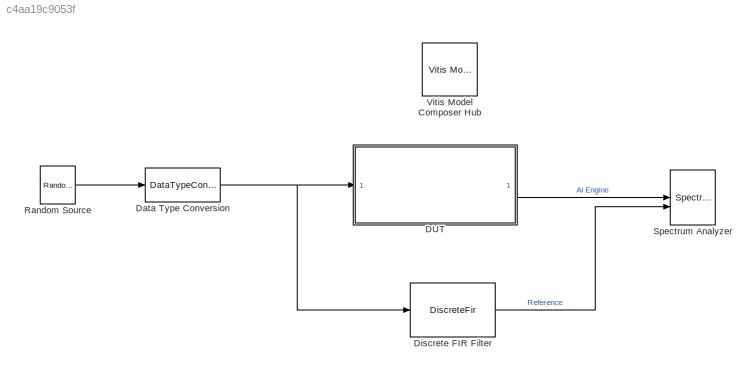
MODEL slx_c4aa19c9053f
KIND model
CONFIG AbsTol = auto
CONFIG EnableMultiTasking = off
CONFIG FixedStep = auto
CONFIG MaxStep = auto
CONFIG MinStep = auto
CONFIG PreLoadFcn = test_tap32_fft128;
CONFIG RelTol = 1e-3
CONFIG SampleTimeConstraint = Unconstrained
CONFIG SolverName = VariableStepAuto
CONFIG StartTime = 0.0
CONFIG StopTime = 1024*16
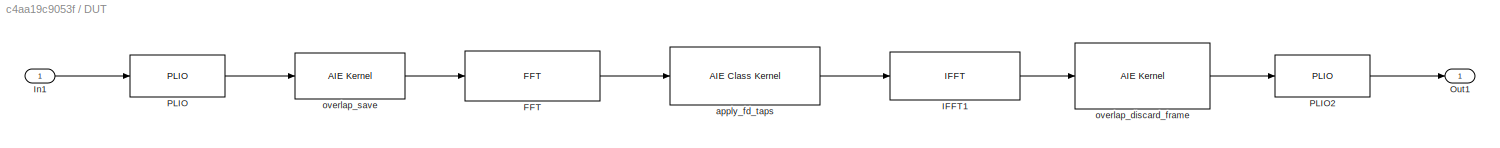
BLOCK [SubSystem] DUT
BLOCK [Reference] DUT/FFT  REF=aieDSP/FFT
  SourceBlock = aieDSP/FFT
  SourceType = FFT
BLOCK [Reference] DUT/IFFT1  REF=aieDSP/IFFT
  SourceBlock = aieDSP/IFFT
  SourceType = IFFT
BLOCK [Inport] DUT/In1
BLOCK [Outport] DUT/Out1
BLOCK [Reference] DUT/PLIO  REF=aieBasic/PLIO
  SourceBlock = aieBasic/PLIO
  SourceType = PLIO
BLOCK [Reference] DUT/PLIO2  REF=aieBasic/PLIO
  SourceBlock = aieBasic/PLIO
  SourceType = PLIO
BLOCK [Reference] DUT/apply_fd_taps  REF=aieBasic/AIE Class Kernel
  SourceBlock = aieBasic/AIE Class Kernel
  SourceType = AIE Class Kernel Function
BLOCK [Reference] DUT/overlap_discard_frame  REF=aieBasic/AIE Kernel
  SourceBlock = aieBasic/AIE Kernel
  SourceType = AIE Kernel Function
BLOCK [Reference] DUT/overlap_save  REF=aieBasic/AIE Kernel
  SourceBlock = aieBasic/AIE Kernel
  SourceType = AIE Kernel Function
BLOCK [DataTypeConversion] Data Type Conversion
  OutDataTypeStr = int16
  RndMeth = Floor
  SaturateOnIntegerOverflow = off
BLOCK [DiscreteFir] Discrete FIR Filter
  Coefficients = taps_td
  InputPortMap = u0
  InputProcessing = Columns as channels (frame based)
  OutDataTypeStr = Inherit: Same as input
  OutputPortMap = o0
  RndMeth = Convergent
  SaturateOnIntegerOverflow = on
BLOCK [Reference] Random Source  REF=dspobslib/Random
Source
  SourceBlock = dspobslib/Random\nSource
  SourceType = Random Source Obsolete
  UserDataPersistent = on
BLOCK [SpectrumAnalyzer] Spectrum Analyzer
  AllowFFTLengthLessThanSamplesPerUpdate = on
  AveragingMethod = Exponential
  ChannelNames = [""]
  DefaultConfigurationName = spbscopes.SpectrumAnalyzerBlockCfg
  GraphicalSettings = {"GraphicalSettings":{"Style":{"BackgroundColor":[0.12941176470588237,0.12941176470588237,0.12941176470588237],"AxesColor":[0,0,0],"LabelsColor":[0.6862745098039216,0.6862745098039216,0.6862745098039216],"PreserveColors":false,"Visible":[true,true],"LineStyle":["-","-"],"LineColor":[[1,1,0.06666666666666667],[0.07450980392156863,0.6235294117647059,1]],"LineWidth":[1,1],"Marker":["none","none"],"Fo...<+934ch>
  NumInputPorts = 2
  SampleRate = 1
  ScopeFrameLocation = window
  ScopeSpecificationString = spbscopes.SpectrumAnalyzerBlockCfg('CurrentConfiguration', extmgr.ConfigurationSet(extmgr.Configuration('Core','General UI',true,'FigureColor',[0.16        0.16        0.16]),extmgr.Configuration('Visuals','Spectrum',true,'Title','','YLabel','','MinYLim','-23.5584','MaxYLim','56.316','Legend',true,'AxesProperties',struct('XGrid',{'on','on'},'YGrid',{'on','on'},'ZGrid',{'on','on'},'Color',{[0 0 0],...<+2370ch>
  ShowLegend = on
  Span = 1
  StartFrequency = -0.5
  StopFrequency = 0.5
  WasSavedAsWebScope = on
  WindowPosition = [643.000000,171.000000,880.000000,450.000000,]
  YLimits = [-9.08850279,55.77515508]
BLOCK [Reference] Vitis Model Composer Hub  REF=vmcUtilities/Vitis Model Composer Hub
  SourceBlock = vmcUtilities/Vitis Model Composer Hub
  SourceType = VMC Hub
  Tag = genX
  UserDataPersistent = on
LINE DUT/FFT:1 -> DUT/apply_fd_taps:1
LINE DUT/IFFT1:1 -> DUT/overlap_discard_frame:1
LINE DUT/In1:1 -> DUT/PLIO:1
LINE DUT/PLIO2:1 -> DUT/Out1:1
LINE DUT/PLIO:1 -> DUT/overlap_save:1
LINE DUT/apply_fd_taps:1 -> DUT/IFFT1:1
LINE DUT/overlap_discard_frame:1 -> DUT/PLIO2:1
LINE DUT/overlap_save:1 -> DUT/FFT:1
LINE DUT:1 -> Spectrum Analyzer:1
NET Data Type Conversion:1 -> DUT:1, Discrete FIR Filter:1
LINE Discrete FIR Filter:1 -> Spectrum Analyzer:2
LINE Random Source:1 -> Data Type Conversion:1
note: NET lines group one-source signal fan-out (src -> all destinations, sorted); 1:1 wires keep LINE
